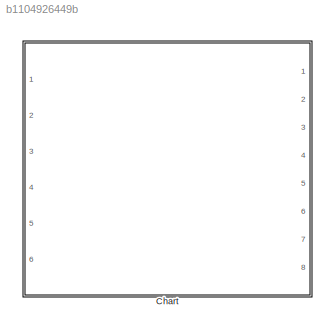
MODEL slx_b1104926449b
KIND model
CONFIG AbsTol = auto
CONFIG EnableMultiTasking = off
CONFIG FixedStep = auto
CONFIG MaxStep = auto
CONFIG MinStep = auto
CONFIG RelTol = 1e-3
CONFIG SampleTimeConstraint = Unconstrained
CONFIG Solver = VariableStepAuto
CONFIG SolverName = VariableStepAuto
CONFIG StartTime = 0.0
CONFIG StopTime = 10.0
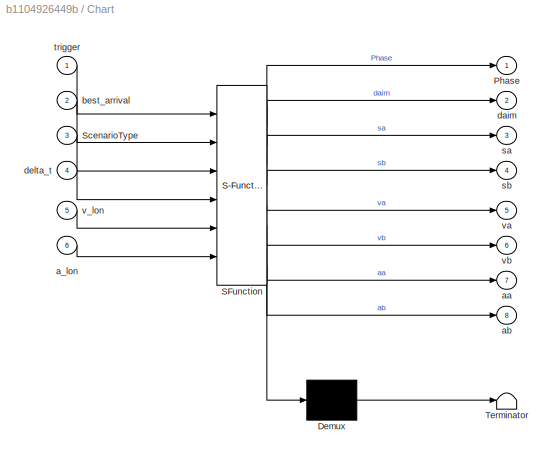
BLOCK [SubSystem] Chart
  BlockKeywords = __PRM__SERIALIZED__DATA__:Stateflow Chart,Stateflow Diagram
  ErrorFcn = Stateflow.Translate.translate
  PermitHierarchicalResolution = ExplicitOnly
  Ports = [6, 8]
  RequestExecContextInheritance = off
  SFBlockType = Chart
  TreatAsAtomicUnit = on
BLOCK [Demux] Chart/ Demux 
  Outputs = 1
  Ports = [1, 1]
BLOCK [S-Function] Chart/ SFunction 
  EnableBusSupport = on
  FunctionName = sf_sfun
  PortCounts = [6 9]
  Ports = [6, 9]
  SFcnIsStateOwnerBlock = off
  SFunctionDeploymentMode = off
  Tag = Stateflow S-Function 3
BLOCK [Terminator] Chart/ Terminator 
BLOCK [Outport] Chart/Phase
  IconDisplay = Port number
BLOCK [Inport] Chart/ScenarioType
  IconDisplay = Port number
  Port = 3
BLOCK [Inport] Chart/a_lon
  IconDisplay = Port number
  Port = 6
BLOCK [Outport] Chart/aa
  IconDisplay = Port number
  Port = 7
BLOCK [Outport] Chart/ab
  IconDisplay = Port number
  Port = 8
BLOCK [Inport] Chart/best_arrival
  IconDisplay = Port number
  Port = 2
BLOCK [Outport] Chart/daim
  IconDisplay = Port number
  Port = 2
BLOCK [Inport] Chart/delta_t
  IconDisplay = Port number
  Port = 4
BLOCK [Outport] Chart/sa
  IconDisplay = Port number
  Port = 3
BLOCK [Outport] Chart/sb
  IconDisplay = Port number
  Port = 4
BLOCK [Inport] Chart/trigger
  IconDisplay = Port number
BLOCK [Inport] Chart/v_lon
  IconDisplay = Port number
  Port = 5
BLOCK [Outport] Chart/va
  IconDisplay = Port number
  Port = 5
BLOCK [Outport] Chart/vb
  IconDisplay = Port number
  Port = 6
CHART Chart states=3 transitions=4
  STATE_LABEL 'initial\nen:\n    sa = 0;\n    sb = 40;\n    va = 40/3.6;\n    vb = 40/3.6;\n    aa = 0;\n    ab = 0;\n    daim = 0;\n    Phase = 0;\ndu:\nPhase = 0;\ndaim = 0;\nif (ScenarioType == 1)\n    sa = 0;\n    sb = 40;\n    va = 40/3.6;\n    vb = 40/3.6;\n    aa = 0;\n    ab = 0;\nelse\n    sa = -40;\n    sb = 0;\n    va = 40/3.6;\n    vb = 40/3.6;\n    aa = 0;\n    ab = 0;\n    \nend\n'
  STATE_LABEL 'phase1\ndu:\nPhase = 1;\nsa = sa + delta_t * (va - v_lon) + 1/2 * (aa-a_lon) * delta_t^2;\nva = va + delta_t * aa;\naa = 0;\nsb = sb + delta_t * (vb - v_lon)  + 1/2 * (ab-a_lon) * delta_t^2;\nvb = vb + delta_t * ab;\nab = 0;\ndaim = 1/2 * (sb - sa);'
  STATE_LABEL 'phase2\ndu:\nPhase = 2;\nsa = sa + delta_t * (va - v_lon) + 1/2 * (aa-a_lon) * delta_t^2;\nva = va + delta_t * aa;\naa = 0;\nsb = sb + delta_t * (vb - v_lon)  + 1/2 * (ab-a_lon) * delta_t^2;\nvb = vb + delta_t * ab;\nab = 0;\ndaim = 1/2 * (sb - sa);'
